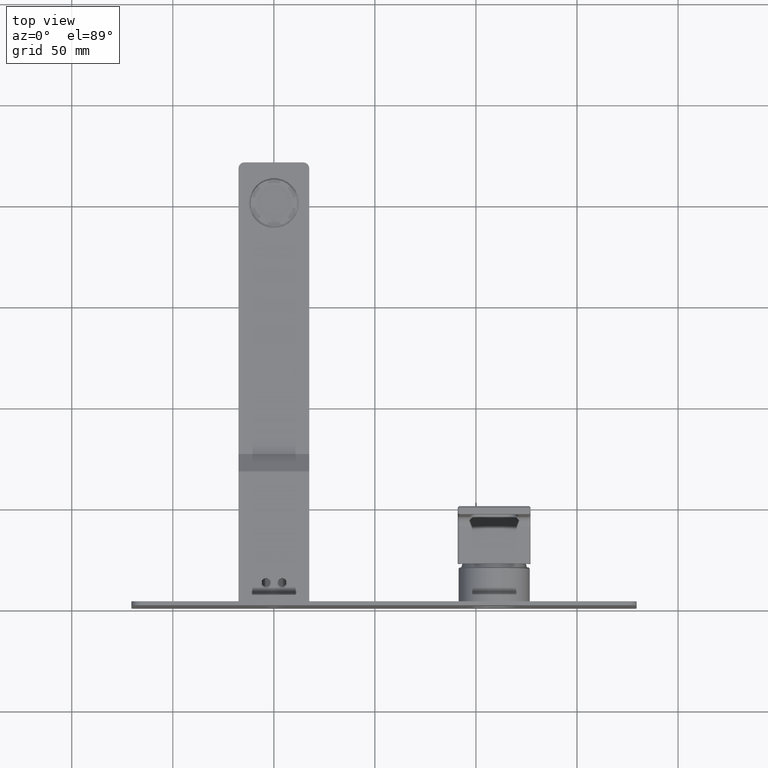
[diagram: clean part render]
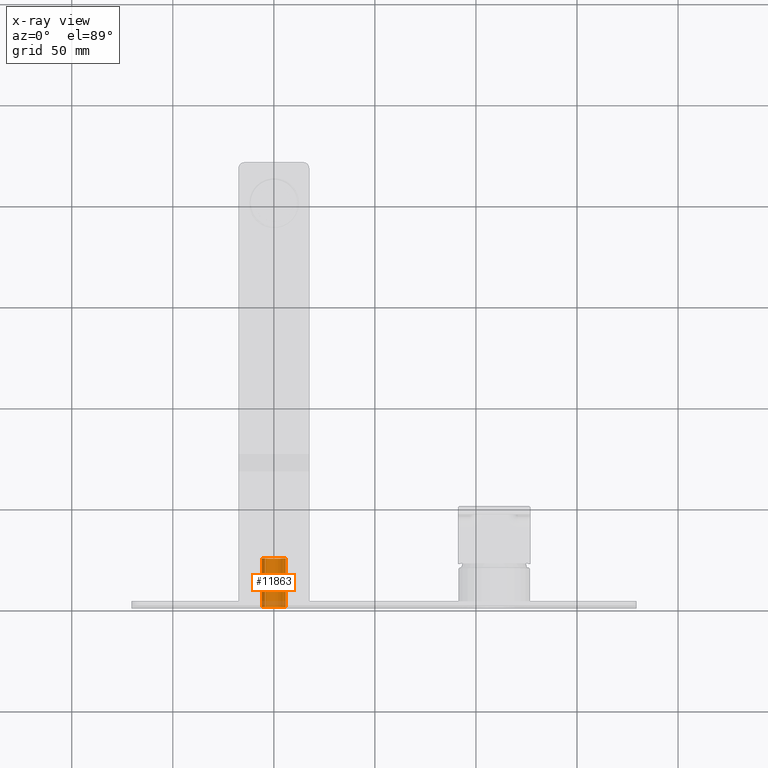
[diagram: x-ray — body ghosted, one internal face saturated and labeled with its STEP entity id]
A machine part, top view, then the same camera in x-ray: the body is ghosted and one INTERNAL B-rep face — a face not visible from any outside direction — is saturated and labeled: STEP entity #11863.
In plain terms, the highlighted cylindrical surface (edge-blend (fillet) strip) has radius 5.9 mm, axis along (0, -1, 0).
Its self-contained STEP definition (entity closure, byte-faithful):
#11324=CARTESIAN_POINT('',(0.E0,7.5E1,0.E0));
#11325=DIRECTION('',(0.E0,1.E0,0.E0));
#11326=DIRECTION('',(7.190916418846E-1,0.E0,6.949152542373E-1));
#11327=AXIS2_PLACEMENT_3D('',#11324,#11325,#11326);
#11329=DIRECTION('',(0.E0,-1.E0,0.E0));
#11330=VECTOR('',#11329,2.4E1);
#11331=CARTESIAN_POINT('',(-4.242640687119E0,7.5E1,4.1E0));
#11332=LINE('',#11331,#11330);
#11333=CARTESIAN_POINT('',(0.E0,5.1E1,0.E0));
#11334=DIRECTION('',(0.E0,-1.E0,0.E0));
#11335=DIRECTION('',(-7.190916418846E-1,0.E0,6.949152542373E-1));
#11336=AXIS2_PLACEMENT_3D('',#11333,#11334,#11335);
#11338=DIRECTION('',(0.E0,-1.E0,0.E0));
#11339=VECTOR('',#11338,2.4E1);
#11340=CARTESIAN_POINT('',(4.242640687119E0,7.5E1,4.1E0));
#11341=LINE('',#11340,#11339);
#11347=CARTESIAN_POINT('',(-4.242640687119E0,7.5E1,4.1E0));
#11349=CARTESIAN_POINT('',(4.242640687119E0,7.5E1,4.1E0));
#11640=VERTEX_POINT('',#11349);
#11641=VERTEX_POINT('',#11347);
#11648=CARTESIAN_POINT('',(-4.242640687119E0,5.1E1,4.1E0));
#11649=CARTESIAN_POINT('',(4.242640687119E0,5.1E1,4.1E0));
#11650=VERTEX_POINT('',#11648);
#11651=VERTEX_POINT('',#11649);
#11849=CARTESIAN_POINT('',(0.E0,1.13E2,0.E0));
#11850=DIRECTION('',(0.E0,-1.E0,0.E0));
#11851=DIRECTION('',(0.E0,0.E0,1.E0));
#11852=AXIS2_PLACEMENT_3D('',#11849,#11850,#11851);
#11853=CYLINDRICAL_SURFACE('',#11852,5.9E0);
#11855=ORIENTED_EDGE('',*,*,#11854,.T.);
#11857=ORIENTED_EDGE('',*,*,#11856,.T.);
#11858=ORIENTED_EDGE('',*,*,#11830,.T.);
#11860=ORIENTED_EDGE('',*,*,#11859,.F.);
#11861=EDGE_LOOP('',(#11855,#11857,#11858,#11860));
#11862=FACE_OUTER_BOUND('',#11861,.F.);
#11863=ADVANCED_FACE('',(#11862),#11853,.T.);
#11328=CIRCLE('',#11327,5.9E0);
#11337=CIRCLE('',#11336,5.9E0);
#11830=EDGE_CURVE('',#11650,#11651,#11337,.T.);
#11854=EDGE_CURVE('',#11640,#11641,#11328,.T.);
#11856=EDGE_CURVE('',#11641,#11650,#11332,.T.);
#11859=EDGE_CURVE('',#11640,#11651,#11341,.T.);